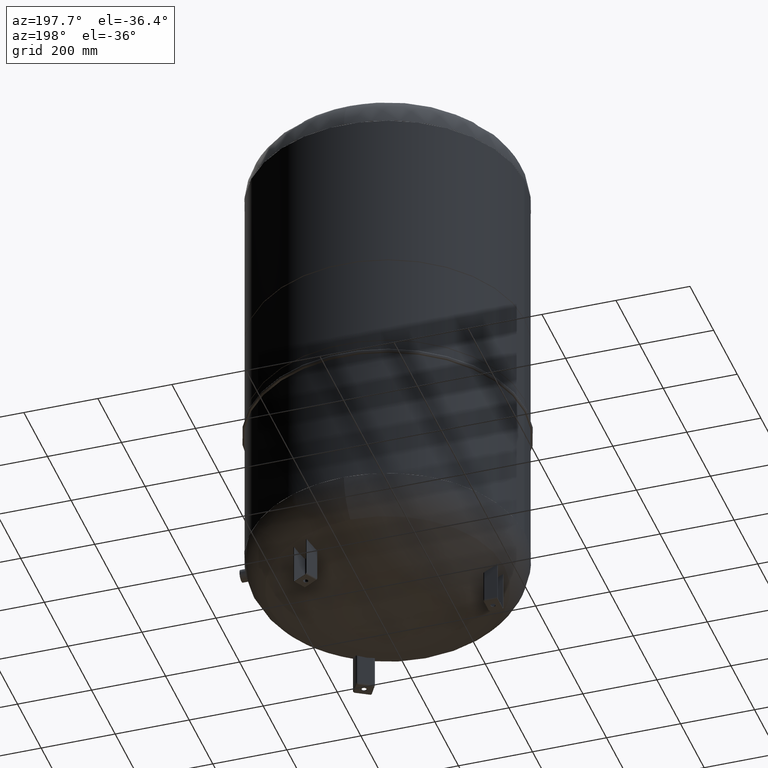
[diagram: clean part render]
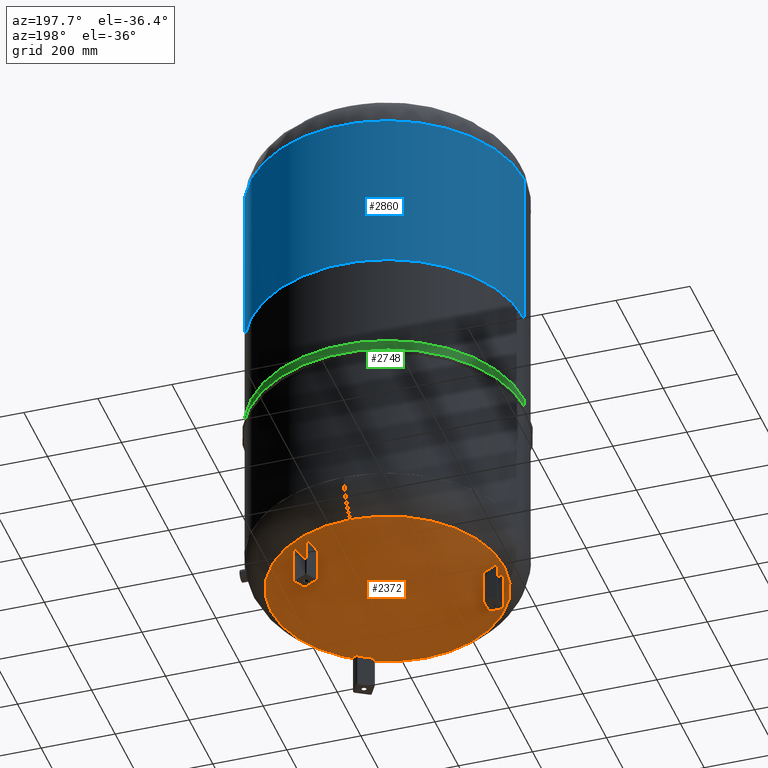
[diagram: same view with three faces highlighted in distinct colors, each labeled with its STEP entity id]
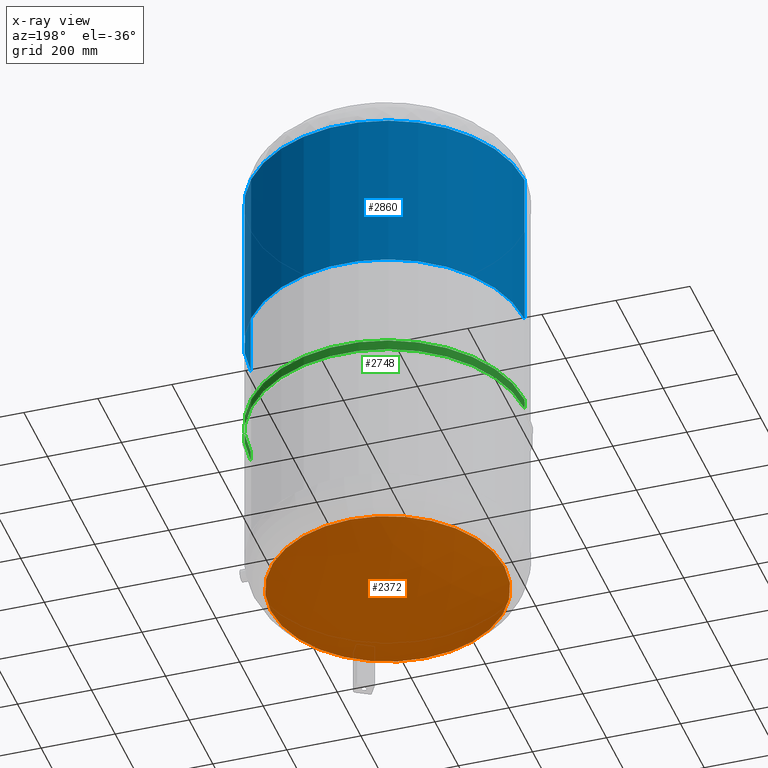
[diagram: x-ray of the same camera — body ghosted, the three highlighted faces saturated]
A machine part, auxiliary view with three faces highlighted in distinct colors.
The next image is the same camera in x-ray (body ghosted, the three faces saturated) — at least one of them is partly hidden behind the body in this view.
Their STEP definitions:

[orange] entity #2372 — the highlighted spherical surface has radius 594 mm.
#2311=CARTESIAN_POINT('',(0.0,-315.931034482758610,115.985505725079490));
#2312=VERTEX_POINT('',#2311);
#2328=CARTESIAN_POINT('',(-3.868912E-014,315.931034482758610,115.985505725079610));
#2329=VERTEX_POINT('',#2328);
#2337=CARTESIAN_POINT('',(-315.931034482758610,-1.671377E-014,115.985505725079550));
#2338=VERTEX_POINT('',#2337);
#2339=CARTESIAN_POINT('',(0.0,-1.671377E-014,115.985505725079550));
#2340=DIRECTION('',(0.0,0.0,1.0));
#2341=DIRECTION('',(-1.0,0.0,0.0));
#2342=AXIS2_PLACEMENT_3D('',#2339,#2340,#2341);
#2343=CIRCLE('',#2342,315.931034482758610);
#2344=EDGE_CURVE('',#2329,#2338,#2343,.T.);
#2346=CARTESIAN_POINT('',(0.0,-1.671377E-014,115.985505725079550));
#2347=DIRECTION('',(0.0,0.0,1.0));
#2348=DIRECTION('',(-1.0,0.0,0.0));
#2349=AXIS2_PLACEMENT_3D('',#2346,#2347,#2348);
#2350=CIRCLE('',#2349,315.931034482758610);
#2351=EDGE_CURVE('',#2338,#2312,#2350,.T.);
#2356=CARTESIAN_POINT('',(0.0,-1.091160E-013,619.0));
#2357=DIRECTION('',(0.0,-1.0,0.0));
#2358=DIRECTION('',(1.0,0.0,0.0));
#2359=AXIS2_PLACEMENT_3D('',#2356,#2357,#2358);
#2360=SPHERICAL_SURFACE('',#2359,594.0);
#2361=ORIENTED_EDGE('',*,*,#2351,.F.);
#2362=ORIENTED_EDGE('',*,*,#2344,.F.);
#2363=CARTESIAN_POINT('',(0.0,-1.671377E-014,115.985505725079550));
#2364=DIRECTION('',(0.0,0.0,1.0));
#2365=DIRECTION('',(-1.0,0.0,0.0));
#2366=AXIS2_PLACEMENT_3D('',#2363,#2364,#2365);
#2367=CIRCLE('',#2366,315.931034482758610);
#2368=EDGE_CURVE('',#2312,#2329,#2367,.T.);
#2369=ORIENTED_EDGE('',*,*,#2368,.F.);
#2370=EDGE_LOOP('',(#2361,#2362,#2369));
#2371=FACE_OUTER_BOUND('',#2370,.T.);
#2372=ADVANCED_FACE('',(#2371),#2360,.T.);

[blue] entity #2860 — the highlighted cylindrical surface (partial cylindrical patch) has radius 370 mm, axis along (-0, 0, 1).
#2428=CARTESIAN_POINT('',(369.999999999999940,0.0,1341.0));
#2429=VERTEX_POINT('',#2428);
#2430=CARTESIAN_POINT('',(369.999999999999660,0.0,896.899999999999980));
#2431=VERTEX_POINT('',#2430);
#2432=CARTESIAN_POINT('',(369.999999999999940,0.0,1341.0));
#2433=DIRECTION('',(0.0,0.0,-1.0));
#2434=VECTOR('',#2433,444.100000000000020);
#2435=LINE('',#2432,#2434);
#2436=EDGE_CURVE('',#2429,#2431,#2435,.T.);
#2438=CARTESIAN_POINT('',(-370.0,-4.531044E-014,1341.0));
#2439=VERTEX_POINT('',#2438);
#2447=CARTESIAN_POINT('',(-369.999999999999600,-4.531044E-014,896.899999999999860));
#2448=VERTEX_POINT('',#2447);
#2449=CARTESIAN_POINT('',(-370.0,-4.531044E-014,1341.0));
#2450=DIRECTION('',(0.0,0.0,-1.0));
#2451=VECTOR('',#2450,444.100000000000140);
#2452=LINE('',#2449,#2451);
#2453=EDGE_CURVE('',#2439,#2448,#2452,.T.);
#2833=CARTESIAN_POINT('',(-1.897762E-014,0.0,896.899999999999860));
#2834=DIRECTION('',(0.0,0.0,1.0));
#2835=DIRECTION('',(1.0,0.0,0.0));
#2836=AXIS2_PLACEMENT_3D('',#2833,#2834,#2835);
#2837=CIRCLE('',#2836,369.999999999999660);
#2838=EDGE_CURVE('',#2431,#2448,#2837,.T.);
#2843=CARTESIAN_POINT('',(-5.427058E-014,0.0,1118.949999999999800));
#2844=DIRECTION('',(-1.589415E-016,0.0,1.0));
#2845=DIRECTION('',(1.0,0.0,0.0));
#2846=AXIS2_PLACEMENT_3D('',#2843,#2844,#2845);
#2847=CYLINDRICAL_SURFACE('',#2846,369.999999999999890);
#2848=ORIENTED_EDGE('',*,*,#2436,.T.);
#2849=ORIENTED_EDGE('',*,*,#2838,.T.);
#2850=ORIENTED_EDGE('',*,*,#2453,.F.);
#2851=CARTESIAN_POINT('',(-8.956355E-014,0.0,1341.0));
#2852=DIRECTION('',(0.0,0.0,1.0));
#2853=DIRECTION('',(1.0,0.0,0.0));
#2854=AXIS2_PLACEMENT_3D('',#2851,#2852,#2853);
#2855=CIRCLE('',#2854,370.0);
#2856=EDGE_CURVE('',#2429,#2439,#2855,.T.);
#2857=ORIENTED_EDGE('',*,*,#2856,.F.);
#2858=EDGE_LOOP('',(#2848,#2849,#2850,#2857));
#2859=FACE_OUTER_BOUND('',#2858,.T.);
#2860=ADVANCED_FACE('',(#2859),#2847,.T.);

[green] entity #2748 — the highlighted cylindrical surface (partial cylindrical patch) has radius 370 mm, axis along (-0, 0, 1).
#2576=CARTESIAN_POINT('',(369.999999999999090,0.0,637.899999999999980));
#2577=VERTEX_POINT('',#2576);
#2578=CARTESIAN_POINT('',(369.999999999999550,0.0,609.899999999999860));
#2579=VERTEX_POINT('',#2578);
#2580=CARTESIAN_POINT('',(369.999999999999090,0.0,637.899999999999980));
#2581=DIRECTION('',(0.0,0.0,-1.0));
#2582=VECTOR('',#2581,28.000000000000114);
#2583=LINE('',#2580,#2582);
#2584=EDGE_CURVE('',#2577,#2579,#2583,.T.);
#2586=CARTESIAN_POINT('',(-369.999999999999320,-4.531044E-014,637.899999999999860));
#2587=VERTEX_POINT('',#2586);
#2595=CARTESIAN_POINT('',(-369.999999999999550,-4.531044E-014,609.899999999999640));
#2596=VERTEX_POINT('',#2595);
#2597=CARTESIAN_POINT('',(-369.999999999999320,-4.531044E-014,637.899999999999860));
#2598=DIRECTION('',(0.0,0.0,-1.0));
#2599=VECTOR('',#2598,28.000000000000227);
#2600=LINE('',#2597,#2599);
#2601=EDGE_CURVE('',#2587,#2596,#2600,.T.);
#2721=CARTESIAN_POINT('',(2.663860E-014,0.0,609.899999999999860));
#2722=DIRECTION('',(0.0,0.0,1.0));
#2723=DIRECTION('',(1.0,0.0,0.0));
#2724=AXIS2_PLACEMENT_3D('',#2721,#2722,#2723);
#2725=CIRCLE('',#2724,369.999999999999550);
#2726=EDGE_CURVE('',#2579,#2596,#2725,.T.);
#2731=CARTESIAN_POINT('',(2.441342E-014,0.0,623.899999999999860));
#2732=DIRECTION('',(-1.589415E-016,0.0,1.0));
#2733=DIRECTION('',(1.0,0.0,0.0));
#2734=AXIS2_PLACEMENT_3D('',#2731,#2732,#2733);
#2735=CYLINDRICAL_SURFACE('',#2734,369.999999999999320);
#2736=ORIENTED_EDGE('',*,*,#2584,.T.);
#2737=ORIENTED_EDGE('',*,*,#2726,.T.);
#2738=ORIENTED_EDGE('',*,*,#2601,.F.);
#2739=CARTESIAN_POINT('',(2.218824E-014,0.0,637.899999999999980));
#2740=DIRECTION('',(0.0,0.0,1.0));
#2741=DIRECTION('',(1.0,0.0,0.0));
#2742=AXIS2_PLACEMENT_3D('',#2739,#2740,#2741);
#2743=CIRCLE('',#2742,369.999999999999090);
#2744=EDGE_CURVE('',#2577,#2587,#2743,.T.);
#2745=ORIENTED_EDGE('',*,*,#2744,.F.);
#2746=EDGE_LOOP('',(#2736,#2737,#2738,#2745));
#2747=FACE_OUTER_BOUND('',#2746,.T.);
#2748=ADVANCED_FACE('',(#2747),#2735,.T.);